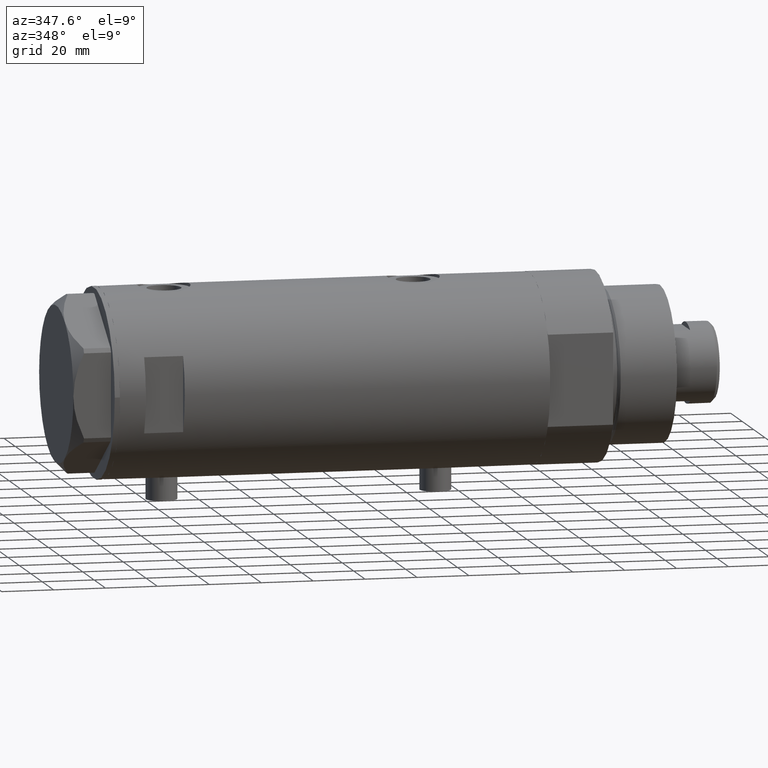
[diagram: clean part render]
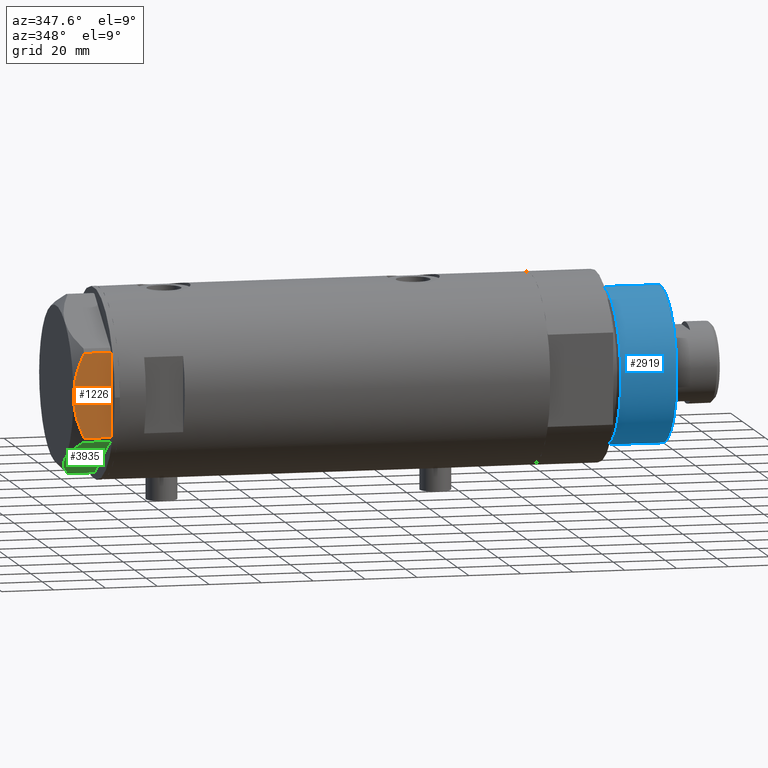
[diagram: same view with three faces highlighted in distinct colors, each labeled with its STEP entity id]
A machine part, auxiliary view with three faces highlighted in distinct colors.
Their STEP definitions:

[orange] entity #1226 — the highlighted planar face has unit normal (-0, 1, 0).
#201 = VERTEX_POINT ( 'NONE', #4385 ) ;
#209 = CARTESIAN_POINT ( 'NONE',  ( -30.00000000000000000, -16.20050807568876294, 10.40518423703603901 ) ) ;
#356 = CARTESIAN_POINT ( 'NONE',  ( -30.00000000000000000, 0.000000000000000000, 14.50000000000000000 ) ) ;
#468 = LINE ( 'NONE', #2876, #4142 ) ;
#702 = VERTEX_POINT ( 'NONE', #2673 ) ;
#735 = CARTESIAN_POINT ( 'NONE',  ( -29.99999999999999645, -2.827567415490778835, 14.37523681947611109 ) ) ;
#770 = ORIENTED_EDGE ( 'NONE', *, *, #916, .T. ) ;
#781 = CARTESIAN_POINT ( 'NONE',  ( -30.00000000000000355, 13.64854889245356695, 11.56384586935411996 ) ) ;
#916 = EDGE_CURVE ( 'NONE', #3944, #2528, #3681, .T. ) ;
#929 = DIRECTION ( 'NONE',  ( 1.000000000000000000, 0.000000000000000000, -0.000000000000000000 ) ) ;
#1086 = EDGE_CURVE ( 'NONE', #201, #2041, #3283, .T. ) ;
#1226 = ADVANCED_FACE ( 'NONE', ( #2994 ), #2642, .F. ) ;
#1271 = CARTESIAN_POINT ( 'NONE',  ( -30.00000000000000000, 0.000000000000000000, 14.50000000000000000 ) ) ;
#1366 = LINE ( 'NONE', #4159, #2379 ) ;
#1393 = ORIENTED_EDGE ( 'NONE', *, *, #1086, .F. ) ;
#1459 = EDGE_CURVE ( 'NONE', #702, #3944, #1366, .T. ) ;
#1461 = CARTESIAN_POINT ( 'NONE',  ( -30.00000000000000000, 9.655259153795977767, 12.99093232113973606 ) ) ;
#1584 = EDGE_CURVE ( 'NONE', #702, #201, #3950, .T. ) ;
#1679 = CARTESIAN_POINT ( 'NONE',  ( -30.00000000000000711, 2.830925467268496476, 14.50000000000000533 ) ) ;
#1941 = CARTESIAN_POINT ( 'NONE',  ( -30.00000000000000000, 17.32050807568877460, 0.000000000000000000 ) ) ;
#2041 = VERTEX_POINT ( 'NONE', #209 ) ;
#2068 = CARTESIAN_POINT ( 'NONE',  ( -29.99999999999999289, -13.63320717147166405, 11.55272916346384804 ) ) ;
#2149 = CARTESIAN_POINT ( 'NONE',  ( -30.00000000000000000, 11.66725319103952607, 12.31690447555093293 ) ) ;
#2332 = DIRECTION ( 'NONE',  ( -0.000000000000000000, 0.000000000000000000, -1.000000000000000000 ) ) ;
#2379 = VECTOR ( 'NONE', #3341, 1000.000000000000000 ) ;
#2419 = CARTESIAN_POINT ( 'NONE',  ( -29.99999999999999645, -12.97715359595204809, 11.81918444541430624 ) ) ;
#2443 = CARTESIAN_POINT ( 'NONE',  ( -30.00000000000000000, -6.973771051792319042, 13.72753822183687511 ) ) ;
#2492 = CARTESIAN_POINT ( 'NONE',  ( -29.99999999999999645, -9.671229349009038856, 13.00645148086949554 ) ) ;
#2528 = VERTEX_POINT ( 'NONE', #2583 ) ;
#2583 = CARTESIAN_POINT ( 'NONE',  ( -30.00000000000000000, -16.20050807568876294, 0.000000000000000000 ) ) ;
#2592 = VECTOR ( 'NONE', #4326, 1000.000000000000000 ) ;
#2635 = CARTESIAN_POINT ( 'NONE',  ( -30.00000000000000000, 5.593935073701701732, 14.09487059093540573 ) ) ;
#2642 = PLANE ( 'NONE',  #3091 ) ;
#2647 = ORIENTED_EDGE ( 'NONE', *, *, #1459, .T. ) ;
#2673 = CARTESIAN_POINT ( 'NONE',  ( -30.00000000000000000, 16.20050807568875584, 10.40518423703603546 ) ) ;
#2753 = CARTESIAN_POINT ( 'NONE',  ( -29.99999999999999289, -5.607365453019637513, 14.01139032121647965 ) ) ;
#2876 = CARTESIAN_POINT ( 'NONE',  ( -30.00000000000000000, -16.20050807568876294, 14.50000000000000000 ) ) ;
#2994 = FACE_OUTER_BOUND ( 'NONE', #4473, .T. ) ;
#3066 = CARTESIAN_POINT ( 'NONE',  ( -30.00000000000000000, 17.32050807568877460, 14.50000000000000000 ) ) ;
#3085 = CARTESIAN_POINT ( 'NONE',  ( -30.00000000000000000, -16.20050807568876294, 10.40518423703603901 ) ) ;
#3091 = AXIS2_PLACEMENT_3D ( 'NONE', #3066, #929, #2332 ) ;
#3126 = DIRECTION ( 'NONE',  ( 0.000000000000000000, 0.000000000000000000, 1.000000000000000000 ) ) ;
#3137 = CARTESIAN_POINT ( 'NONE',  ( -30.00000000000000000, -0.7060353153488233557, 14.49999999999999822 ) ) ;
#3193 = CARTESIAN_POINT ( 'NONE',  ( -30.00000000000000355, 10.99748736931232607, 12.55407623651775495 ) ) ;
#3196 = CARTESIAN_POINT ( 'NONE',  ( -30.00000000000000000, 16.20050807568875584, 0.000000000000000000 ) ) ;
#3283 = B_SPLINE_CURVE_WITH_KNOTS ( 'NONE', 3,
 ( #356, #3137, #3490, #735, #3458, #2753, #2443, #2492, #3890, #2419, #2068, #4127, #3511, #3085 ),
 .UNSPECIFIED., .F., .F.,
 ( 4, 2, 2, 2, 2, 2, 4 ),
 ( 0.06183748343640969869, 0.06393495742991751885, 0.06603243142342535288, 0.07022737941044099319, 0.07442232739745664738, 0.07651980139096448141, 0.07861727538447230157 ),
 .UNSPECIFIED. ) ;
#3341 = DIRECTION ( 'NONE',  ( 0.000000000000000000, 0.000000000000000000, -1.000000000000000000 ) ) ;
#3458 = CARTESIAN_POINT ( 'NONE',  ( -30.00000000000000000, -3.526431665117130798, 14.30125973663612626 ) ) ;
#3490 = CARTESIAN_POINT ( 'NONE',  ( -30.00000000000000355, -1.418661615092686290, 14.47469700449902952 ) ) ;
#3493 = CARTESIAN_POINT ( 'NONE',  ( -30.00000000000001421, 14.93680064777130312, 11.00564802993687508 ) ) ;
#3511 = CARTESIAN_POINT ( 'NONE',  ( -29.99999999999999289, -15.56759648729806322, 10.70591879357992227 ) ) ;
#3681 = LINE ( 'NONE', #1941, #2592 ) ;
#3723 = EDGE_CURVE ( 'NONE', #2528, #2041, #468, .T. ) ;
#3890 = CARTESIAN_POINT ( 'NONE',  ( -30.00000000000000000, -11.00230860792644982, 12.56933207488871673 ) ) ;
#3893 = CARTESIAN_POINT ( 'NONE',  ( -30.00000000000000000, 16.20050807568875584, 10.40518423703603546 ) ) ;
#3944 = VERTEX_POINT ( 'NONE', #3196 ) ;
#3950 = B_SPLINE_CURVE_WITH_KNOTS ( 'NONE', 3,
 ( #3893, #3493, #781, #2149, #3193, #1461, #4041, #2635, #1679, #1271 ),
 .UNSPECIFIED., .F., .F.,
 ( 4, 2, 2, 2, 4 ),
 ( 0.04501738275285960267, 0.04922240792374713014, 0.05132492050919089388, 0.05342743309463465068, 0.06183748343640969869 ),
 .UNSPECIFIED. ) ;
#4041 = CARTESIAN_POINT ( 'NONE',  ( -30.00000000000000711, 8.981118657900116986, 13.19130745470829247 ) ) ;
#4127 = CARTESIAN_POINT ( 'NONE',  ( -29.99999999999999289, -14.92797448277034533, 10.99622797424084553 ) ) ;
#4142 = VECTOR ( 'NONE', #3126, 1000.000000000000000 ) ;
#4159 = CARTESIAN_POINT ( 'NONE',  ( -30.00000000000000000, 16.20050807568875584, 14.50000000000000000 ) ) ;
#4326 = DIRECTION ( 'NONE',  ( 0.000000000000000000, -1.000000000000000000, 0.000000000000000000 ) ) ;
#4378 = ORIENTED_EDGE ( 'NONE', *, *, #1584, .F. ) ;
#4385 = CARTESIAN_POINT ( 'NONE',  ( -30.00000000000000000, 0.000000000000000000, 14.50000000000000000 ) ) ;
#4449 = ORIENTED_EDGE ( 'NONE', *, *, #3723, .T. ) ;
#4473 = EDGE_LOOP ( 'NONE', ( #4378, #2647, #770, #4449, #1393 ) ) ;

[blue] entity #2919 — the highlighted cylindrical surface (partial cylindrical patch) has radius 30 mm, axis along (-1, -0, 0).
#4 = EDGE_CURVE ( 'NONE', #3843, #2138, #1462, .T. ) ;
#16 = CIRCLE ( 'NONE', #3697, 30.00000000000000000 ) ;
#92 = ORIENTED_EDGE ( 'NONE', *, *, #2182, .T. ) ;
#140 = DIRECTION ( 'NONE',  ( -0.000000000000000000, -0.000000000000000000, -1.000000000000000000 ) ) ;
#155 = VECTOR ( 'NONE', #140, 1000.000000000000000 ) ;
#215 = DIRECTION ( 'NONE',  ( -0.000000000000000000, -0.000000000000000000, -1.000000000000000000 ) ) ;
#225 = CARTESIAN_POINT ( 'NONE',  ( -30.00000000000000000, 0.000000000000000000, 50.19999999999999574 ) ) ;
#280 = EDGE_CURVE ( 'NONE', #844, #4465, #2067, .T. ) ;
#568 = CARTESIAN_POINT ( 'NONE',  ( 0.000000000000000000, 0.000000000000000000, 50.19999999999999574 ) ) ;
#647 = CARTESIAN_POINT ( 'NONE',  ( 0.000000000000000000, 0.000000000000000000, 50.19999999999999574 ) ) ;
#844 = VERTEX_POINT ( 'NONE', #2038 ) ;
#1004 = VECTOR ( 'NONE', #3838, 1000.000000000000000 ) ;
#1462 = LINE ( 'NONE', #2929, #155 ) ;
#1631 = FACE_OUTER_BOUND ( 'NONE', #2999, .T. ) ;
#1636 = DIRECTION ( 'NONE',  ( -0.000000000000000000, -0.000000000000000000, 1.000000000000000000 ) ) ;
#1812 = AXIS2_PLACEMENT_3D ( 'NONE', #568, #215, #4336 ) ;
#1945 = CIRCLE ( 'NONE', #2818, 30.00000000000000000 ) ;
#2007 = DIRECTION ( 'NONE',  ( 0.000000000000000000, 0.000000000000000000, 1.000000000000000000 ) ) ;
#2038 = CARTESIAN_POINT ( 'NONE',  ( 30.00000000000000000, 3.673940397442058389E-15, 50.19999999999999574 ) ) ;
#2067 = LINE ( 'NONE', #2372, #1004 ) ;
#2138 = VERTEX_POINT ( 'NONE', #2970 ) ;
#2182 = EDGE_CURVE ( 'NONE', #2138, #4465, #16, .T. ) ;
#2372 = CARTESIAN_POINT ( 'NONE',  ( 30.00000000000000000, 3.673940397442058389E-15, 50.19999999999999574 ) ) ;
#2380 = DIRECTION ( 'NONE',  ( 1.000000000000000000, 0.000000000000000000, 0.000000000000000000 ) ) ;
#2637 = EDGE_CURVE ( 'NONE', #3843, #844, #1945, .T. ) ;
#2676 = ORIENTED_EDGE ( 'NONE', *, *, #4, .T. ) ;
#2688 = ORIENTED_EDGE ( 'NONE', *, *, #280, .F. ) ;
#2818 = AXIS2_PLACEMENT_3D ( 'NONE', #647, #2007, #2380 ) ;
#2919 = ADVANCED_FACE ( 'NONE', ( #1631 ), #3312, .T. ) ;
#2929 = CARTESIAN_POINT ( 'NONE',  ( -30.00000000000000000, 0.000000000000000000, 50.19999999999999574 ) ) ;
#2970 = CARTESIAN_POINT ( 'NONE',  ( -30.00000000000000000, 0.000000000000000000, 28.57384048104054486 ) ) ;
#2999 = EDGE_LOOP ( 'NONE', ( #2688, #3783, #2676, #92 ) ) ;
#3312 = CYLINDRICAL_SURFACE ( 'NONE', #1812, 30.00000000000000000 ) ;
#3697 = AXIS2_PLACEMENT_3D ( 'NONE', #4431, #1636, #3725 ) ;
#3725 = DIRECTION ( 'NONE',  ( 1.000000000000000000, 0.000000000000000000, 0.000000000000000000 ) ) ;
#3783 = ORIENTED_EDGE ( 'NONE', *, *, #2637, .F. ) ;
#3838 = DIRECTION ( 'NONE',  ( -0.000000000000000000, -0.000000000000000000, -1.000000000000000000 ) ) ;
#3843 = VERTEX_POINT ( 'NONE', #225 ) ;
#4178 = CARTESIAN_POINT ( 'NONE',  ( 30.00000000000000000, 3.673940397442058389E-15, 28.57384048104054486 ) ) ;
#4336 = DIRECTION ( 'NONE',  ( -1.000000000000000000, 0.000000000000000000, 0.000000000000000000 ) ) ;
#4431 = CARTESIAN_POINT ( 'NONE',  ( 0.000000000000000000, 0.000000000000000000, 28.57384048104054486 ) ) ;
#4465 = VERTEX_POINT ( 'NONE', #4178 ) ;

[green] entity #3935 — the highlighted planar face has unit normal (0, 0.5, 0.866).
#25 = ORIENTED_EDGE ( 'NONE', *, *, #2865, .T. ) ;
#274 = EDGE_LOOP ( 'NONE', ( #2204, #25, #1355, #1157, #3548 ) ) ;
#277 = CARTESIAN_POINT ( 'NONE',  ( -13.77383861939865461, 26.68868671669327242, 14.47500996539161555 ) ) ;
#286 = CARTESIAN_POINT ( 'NONE',  ( -17.43031680809874473, 24.57761805016127710, 14.50000000000000533 ) ) ;
#323 = VERTEX_POINT ( 'NONE', #1525 ) ;
#329 = CARTESIAN_POINT ( 'NONE',  ( -11.92931894229901246, 27.75362064879230317, 14.29910535634587099 ) ) ;
#339 = CARTESIAN_POINT ( 'NONE',  ( -0.9699484522384067553, 34.08101615137763218, 10.40518423703594841 ) ) ;
#614 = CARTESIAN_POINT ( 'NONE',  ( -8.929227268745748347, 29.48572438411184393, 13.71922620632299328 ) ) ;
#730 = EDGE_CURVE ( 'NONE', #2702, #2447, #2738, .T. ) ;
#950 = CARTESIAN_POINT ( 'NONE',  ( -27.92668431253403583, 18.51753744596231854, 11.01056656432685266 ) ) ;
#1055 = DIRECTION ( 'NONE',  ( 0.8660254037844387076, 0.4999999999999997780, 0.000000000000000000 ) ) ;
#1157 = ORIENTED_EDGE ( 'NONE', *, *, #1784, .F. ) ;
#1159 = VERTEX_POINT ( 'NONE', #1440 ) ;
#1253 = CARTESIAN_POINT ( 'NONE',  ( -23.36084816446653534, 21.15362417512481841, 12.99122625442232248 ) ) ;
#1355 = ORIENTED_EDGE ( 'NONE', *, *, #2174, .F. ) ;
#1396 = PLANE ( 'NONE',  #4080 ) ;
#1416 = DIRECTION ( 'NONE',  ( 0.4999999999999998335, -0.8660254037844388186, 0.000000000000000000 ) ) ;
#1440 = CARTESIAN_POINT ( 'NONE',  ( -29.03005154776141339, 17.88050807568878042, 0.000000000000000000 ) ) ;
#1525 = CARTESIAN_POINT ( 'NONE',  ( -29.03005154776140984, 17.88050807568878398, 10.40518423703604256 ) ) ;
#1627 = CARTESIAN_POINT ( 'NONE',  ( -14.99999999999999645, 25.98076211353316367, 14.50000000000000000 ) ) ;
#1742 = FACE_OUTER_BOUND ( 'NONE', #274, .T. ) ;
#1760 = B_SPLINE_CURVE_WITH_KNOTS ( 'NONE', 3,
 ( #3315, #286, #4384, #2987, #1253, #2636, #3337, #2657, #950, #2328 ),
 .UNSPECIFIED., .F., .F.,
 ( 4, 2, 2, 2, 4 ),
 ( 0.01795453117522810907, 0.02625795893839791631, 0.02833381587919037159, 0.03040967281998281993, 0.03456138670156771314 ),
 .UNSPECIFIED. ) ;
#1764 = LINE ( 'NONE', #4211, #2315 ) ;
#1784 = EDGE_CURVE ( 'NONE', #2702, #2002, #3896, .T. ) ;
#1990 = CARTESIAN_POINT ( 'NONE',  ( -10.11505054612624832, 28.80108899570488035, 14.00566141361760764 ) ) ;
#2002 = VERTEX_POINT ( 'NONE', #3561 ) ;
#2107 = CARTESIAN_POINT ( 'NONE',  ( 0.000000000000000000, 34.64101615137754209, 0.000000000000000000 ) ) ;
#2174 = EDGE_CURVE ( 'NONE', #2002, #323, #1760, .T. ) ;
#2204 = ORIENTED_EDGE ( 'NONE', *, *, #4067, .T. ) ;
#2315 = VECTOR ( 'NONE', #3141, 1000.000000000000000 ) ;
#2322 = VECTOR ( 'NONE', #3496, 1000.000000000000114 ) ;
#2328 = CARTESIAN_POINT ( 'NONE',  ( -29.03005154776140984, 17.88050807568878398, 10.40518423703604256 ) ) ;
#2344 = CARTESIAN_POINT ( 'NONE',  ( -3.175372020745250712, 32.80771426042305450, 11.61522964162834093 ) ) ;
#2375 = VECTOR ( 'NONE', #3737, 1000.000000000000000 ) ;
#2447 = VERTEX_POINT ( 'NONE', #2523 ) ;
#2523 = CARTESIAN_POINT ( 'NONE',  ( -0.9699484522385684038, 34.08101615137753981, 0.000000000000000000 ) ) ;
#2636 = CARTESIAN_POINT ( 'NONE',  ( -24.52256617298829866, 20.48290597018235104, 12.55468001512206833 ) ) ;
#2648 = CARTESIAN_POINT ( 'NONE',  ( -0.9699484522385681817, 34.08101615137753981, 14.50000000000000000 ) ) ;
#2657 = CARTESIAN_POINT ( 'NONE',  ( -26.80734602959449475, 19.16378770493171046, 11.56973717813737856 ) ) ;
#2702 = VERTEX_POINT ( 'NONE', #339 ) ;
#2738 = LINE ( 'NONE', #2648, #2375 ) ;
#2865 = EDGE_CURVE ( 'NONE', #1159, #323, #1764, .T. ) ;
#2987 = CARTESIAN_POINT ( 'NONE',  ( -22.77266513462828712, 21.49321180573470258, 13.19311392138146388 ) ) ;
#3141 = DIRECTION ( 'NONE',  ( 0.000000000000000000, 0.000000000000000000, 1.000000000000000000 ) ) ;
#3219 = CARTESIAN_POINT ( 'NONE',  ( 0.000000000000000000, 34.64101615137754209, 14.50000000000000000 ) ) ;
#3315 = CARTESIAN_POINT ( 'NONE',  ( -14.99999999999999645, 25.98076211353316367, 14.50000000000000000 ) ) ;
#3337 = CARTESIAN_POINT ( 'NONE',  ( -25.09761465865699392, 20.15090157218442357, 12.31959434659020225 ) ) ;
#3350 = CARTESIAN_POINT ( 'NONE',  ( -0.9699484522384067553, 34.08101615137763218, 10.40518423703594841 ) ) ;
#3372 = CARTESIAN_POINT ( 'NONE',  ( -14.38812268849982878, 26.33402964403881441, 14.50000000000000355 ) ) ;
#3496 = DIRECTION ( 'NONE',  ( -0.8660254037844387076, -0.4999999999999998335, 0.000000000000000000 ) ) ;
#3548 = ORIENTED_EDGE ( 'NONE', *, *, #730, .T. ) ;
#3561 = CARTESIAN_POINT ( 'NONE',  ( -14.99999999999999645, 25.98076211353316367, 14.50000000000000000 ) ) ;
#3737 = DIRECTION ( 'NONE',  ( 0.000000000000000000, 0.000000000000000000, -1.000000000000000000 ) ) ;
#3846 = LINE ( 'NONE', #2107, #2322 ) ;
#3896 = B_SPLINE_CURVE_WITH_KNOTS ( 'NONE', 3,
 ( #3350, #2344, #4423, #614, #1990, #329, #4083, #277, #3372, #1627 ),
 .UNSPECIFIED., .F., .F.,
 ( 4, 2, 2, 2, 4 ),
 ( 0.001230196178133369841, 0.009592363676680740539, 0.01377344742595442567, 0.01586398930059126564, 0.01795453117522810907 ),
 .UNSPECIFIED. ) ;
#3935 = ADVANCED_FACE ( 'NONE', ( #1742 ), #1396, .F. ) ;
#4067 = EDGE_CURVE ( 'NONE', #2447, #1159, #3846, .T. ) ;
#4080 = AXIS2_PLACEMENT_3D ( 'NONE', #3219, #1416, #1055 ) ;
#4083 = CARTESIAN_POINT ( 'NONE',  ( -12.54037849421162676, 27.40082525200466890, 14.37423503257921809 ) ) ;
#4211 = CARTESIAN_POINT ( 'NONE',  ( -29.03005154776140628, 17.88050807568878753, 14.50000000000000000 ) ) ;
#4384 = CARTESIAN_POINT ( 'NONE',  ( -19.82219921729533141, 23.19666409734169932, 14.10092492974134792 ) ) ;
#4423 = CARTESIAN_POINT ( 'NONE',  ( -5.430403497542002356, 31.50577123026336679, 12.63511531451932157 ) ) ;